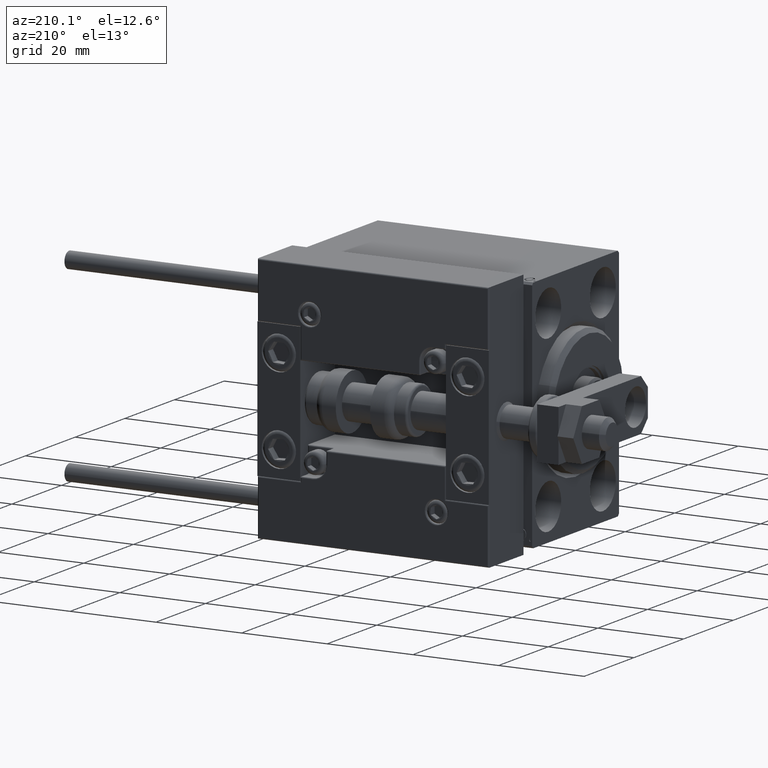
[diagram: clean part render]
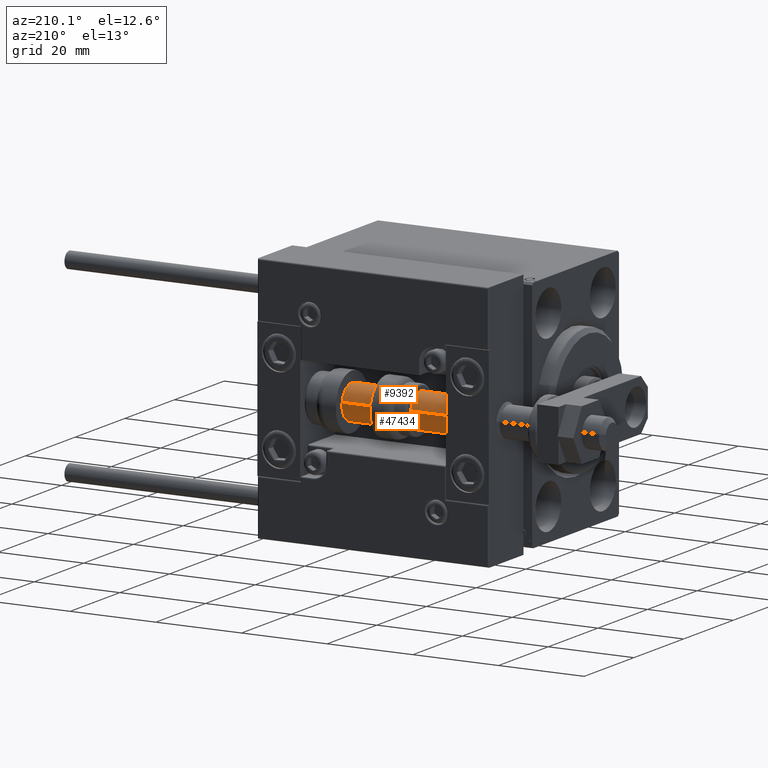
[diagram: same view with one multi-face feature highlighted, each face labeled with its STEP entity id]
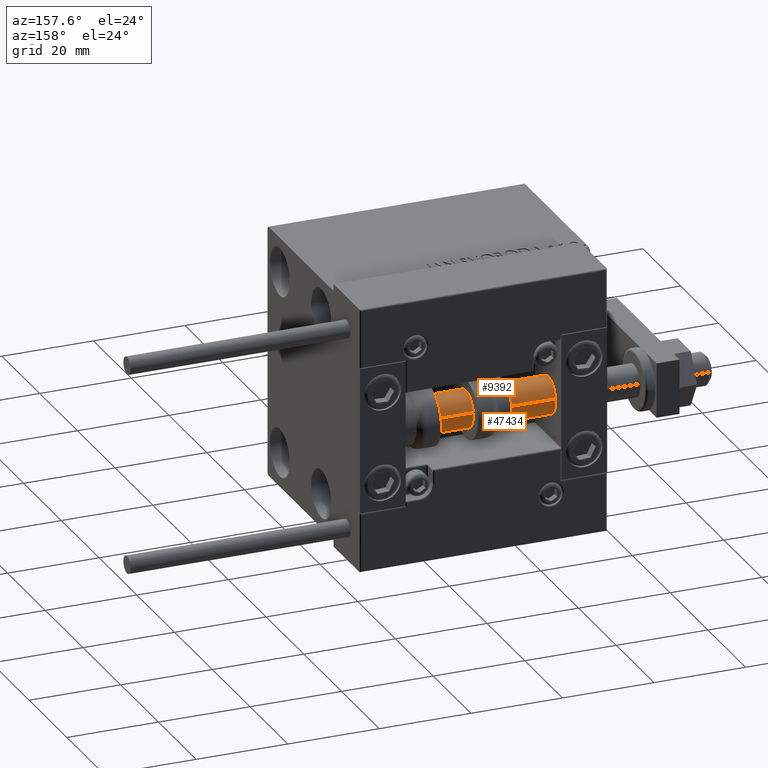
[diagram: same view with one multi-face feature highlighted, each face labeled with its STEP entity id]
A machine part, auxiliary view. The highlighted faces form ONE feature: a constant-radius fillet chain: 2 tangent blend faces with common blend radius 4 mm. The faces share edges in the B-rep.
A second angle (auxiliary view) of the same feature is appended — it is thin or edge-on in the first view.
Their STEP definitions:
[1] entity #47434 (Cylinder):
#690 = VERTEX_POINT ( 'NONE', #14343 ) ;
#1330 = VERTEX_POINT ( 'NONE', #35649 ) ;
#1540 = LINE ( 'NONE', #13022, #34460 ) ;
#5790 = VERTEX_POINT ( 'NONE', #45395 ) ;
#8046 = CIRCLE ( 'NONE', #47069, 4.000000000000000000 ) ;
#11405 = EDGE_CURVE ( 'NONE', #13223, #690, #1540, .T. ) ;
#13022 = CARTESIAN_POINT ( 'NONE',  ( -4.000000000000000000, 0.000000000000000000, 56.00000000000000000 ) ) ;
#13223 = VERTEX_POINT ( 'NONE', #24955 ) ;
#13574 = DIRECTION ( 'NONE',  ( -0.000000000000000000, -0.000000000000000000, -1.000000000000000000 ) ) ;
#14343 = CARTESIAN_POINT ( 'NONE',  ( -4.000000000000000000, 0.000000000000000000, 2.000000000000036415 ) ) ;
#15312 = CIRCLE ( 'NONE', #42943, 4.000000000000000000 ) ;
#17651 = LINE ( 'NONE', #45147, #23522 ) ;
#20446 = EDGE_LOOP ( 'NONE', ( #37776, #38299, #43767, #37740 ) ) ;
#23522 = VECTOR ( 'NONE', #13574, 1000.000000000000000 ) ;
#24311 = DIRECTION ( 'NONE',  ( 1.000000000000000000, 0.000000000000000000, 0.000000000000000000 ) ) ;
#24941 = CARTESIAN_POINT ( 'NONE',  ( 0.000000000000000000, 0.000000000000000000, 56.00000000000000000 ) ) ;
#24955 = CARTESIAN_POINT ( 'NONE',  ( -4.000000000000000000, 0.000000000000000000, 56.00000000000000000 ) ) ;
#25492 = DIRECTION ( 'NONE',  ( -0.000000000000000000, -0.000000000000000000, -1.000000000000000000 ) ) ;
#25821 = EDGE_CURVE ( 'NONE', #13223, #5790, #15312, .T. ) ;
#25851 = CARTESIAN_POINT ( 'NONE',  ( 0.000000000000000000, 0.000000000000000000, 2.000000000000036415 ) ) ;
#26380 = AXIS2_PLACEMENT_3D ( 'NONE', #24941, #39976, #29257 ) ;
#27863 = EDGE_CURVE ( 'NONE', #5790, #1330, #17651, .T. ) ;
#28449 = EDGE_CURVE ( 'NONE', #690, #1330, #8046, .T. ) ;
#29257 = DIRECTION ( 'NONE',  ( -1.000000000000000000, 0.000000000000000000, 0.000000000000000000 ) ) ;
#34460 = VECTOR ( 'NONE', #25492, 1000.000000000000000 ) ;
#35649 = CARTESIAN_POINT ( 'NONE',  ( 4.000000000000000000, 4.898587196589412829E-16, 2.000000000000036415 ) ) ;
#37740 = ORIENTED_EDGE ( 'NONE', *, *, #28449, .T. ) ;
#37776 = ORIENTED_EDGE ( 'NONE', *, *, #27863, .F. ) ;
#38299 = ORIENTED_EDGE ( 'NONE', *, *, #25821, .F. ) ;
#39976 = DIRECTION ( 'NONE',  ( -0.000000000000000000, -0.000000000000000000, -1.000000000000000000 ) ) ;
#40586 = DIRECTION ( 'NONE',  ( 0.000000000000000000, 0.000000000000000000, 1.000000000000000000 ) ) ;
#42943 = AXIS2_PLACEMENT_3D ( 'NONE', #47953, #40586, #24311 ) ;
#43767 = ORIENTED_EDGE ( 'NONE', *, *, #11405, .T. ) ;
#44291 = CYLINDRICAL_SURFACE ( 'NONE', #26380, 4.000000000000000000 ) ;
#44442 = DIRECTION ( 'NONE',  ( -0.000000000000000000, -0.000000000000000000, 1.000000000000000000 ) ) ;
#45147 = CARTESIAN_POINT ( 'NONE',  ( 4.000000000000000000, 4.898587196589412829E-16, 56.00000000000000000 ) ) ;
#45395 = CARTESIAN_POINT ( 'NONE',  ( 4.000000000000000000, 4.898587196589412829E-16, 56.00000000000000000 ) ) ;
#45450 = DIRECTION ( 'NONE',  ( 1.000000000000000000, 0.000000000000000000, 0.000000000000000000 ) ) ;
#47069 = AXIS2_PLACEMENT_3D ( 'NONE', #25851, #44442, #45450 ) ;
#47434 = ADVANCED_FACE ( 'NONE', ( #48343 ), #44291, .T. ) ;
#47953 = CARTESIAN_POINT ( 'NONE',  ( 0.000000000000000000, 0.000000000000000000, 56.00000000000000000 ) ) ;
#48343 = FACE_OUTER_BOUND ( 'NONE', #20446, .T. ) ;
[2] entity #9392 (Cylinder):
#690 = VERTEX_POINT ( 'NONE', #14343 ) ;
#1330 = VERTEX_POINT ( 'NONE', #35649 ) ;
#1540 = LINE ( 'NONE', #13022, #34460 ) ;
#4634 = CYLINDRICAL_SURFACE ( 'NONE', #33693, 4.000000000000000000 ) ;
#5114 = CARTESIAN_POINT ( 'NONE',  ( 0.000000000000000000, 0.000000000000000000, 2.000000000000036415 ) ) ;
#5146 = ORIENTED_EDGE ( 'NONE', *, *, #11405, .F. ) ;
#5790 = VERTEX_POINT ( 'NONE', #45395 ) ;
#6387 = AXIS2_PLACEMENT_3D ( 'NONE', #5114, #48375, #9193 ) ;
#8874 = CARTESIAN_POINT ( 'NONE',  ( 0.000000000000000000, 0.000000000000000000, 56.00000000000000000 ) ) ;
#9193 = DIRECTION ( 'NONE',  ( 1.000000000000000000, 0.000000000000000000, 0.000000000000000000 ) ) ;
#9392 = ADVANCED_FACE ( 'NONE', ( #27807 ), #4634, .T. ) ;
#10196 = DIRECTION ( 'NONE',  ( -1.000000000000000000, 0.000000000000000000, 0.000000000000000000 ) ) ;
#11405 = EDGE_CURVE ( 'NONE', #13223, #690, #1540, .T. ) ;
#12887 = CIRCLE ( 'NONE', #6387, 4.000000000000000000 ) ;
#13022 = CARTESIAN_POINT ( 'NONE',  ( -4.000000000000000000, 0.000000000000000000, 56.00000000000000000 ) ) ;
#13223 = VERTEX_POINT ( 'NONE', #24955 ) ;
#13574 = DIRECTION ( 'NONE',  ( -0.000000000000000000, -0.000000000000000000, -1.000000000000000000 ) ) ;
#14343 = CARTESIAN_POINT ( 'NONE',  ( -4.000000000000000000, 0.000000000000000000, 2.000000000000036415 ) ) ;
#14858 = EDGE_CURVE ( 'NONE', #5790, #13223, #18291, .T. ) ;
#17651 = LINE ( 'NONE', #45147, #23522 ) ;
#18081 = DIRECTION ( 'NONE',  ( -0.000000000000000000, -0.000000000000000000, -1.000000000000000000 ) ) ;
#18291 = CIRCLE ( 'NONE', #45109, 4.000000000000000000 ) ;
#23522 = VECTOR ( 'NONE', #13574, 1000.000000000000000 ) ;
#24955 = CARTESIAN_POINT ( 'NONE',  ( -4.000000000000000000, 0.000000000000000000, 56.00000000000000000 ) ) ;
#25492 = DIRECTION ( 'NONE',  ( -0.000000000000000000, -0.000000000000000000, -1.000000000000000000 ) ) ;
#26278 = ORIENTED_EDGE ( 'NONE', *, *, #14858, .F. ) ;
#26985 = EDGE_CURVE ( 'NONE', #1330, #690, #12887, .T. ) ;
#27807 = FACE_OUTER_BOUND ( 'NONE', #32688, .T. ) ;
#27863 = EDGE_CURVE ( 'NONE', #5790, #1330, #17651, .T. ) ;
#32035 = DIRECTION ( 'NONE',  ( 1.000000000000000000, 0.000000000000000000, 0.000000000000000000 ) ) ;
#32514 = DIRECTION ( 'NONE',  ( 0.000000000000000000, 0.000000000000000000, 1.000000000000000000 ) ) ;
#32688 = EDGE_LOOP ( 'NONE', ( #26278, #44624, #43575, #5146 ) ) ;
#33693 = AXIS2_PLACEMENT_3D ( 'NONE', #44568, #18081, #10196 ) ;
#34460 = VECTOR ( 'NONE', #25492, 1000.000000000000000 ) ;
#35649 = CARTESIAN_POINT ( 'NONE',  ( 4.000000000000000000, 4.898587196589412829E-16, 2.000000000000036415 ) ) ;
#43575 = ORIENTED_EDGE ( 'NONE', *, *, #26985, .T. ) ;
#44568 = CARTESIAN_POINT ( 'NONE',  ( 0.000000000000000000, 0.000000000000000000, 56.00000000000000000 ) ) ;
#44624 = ORIENTED_EDGE ( 'NONE', *, *, #27863, .T. ) ;
#45109 = AXIS2_PLACEMENT_3D ( 'NONE', #8874, #32514, #32035 ) ;
#45147 = CARTESIAN_POINT ( 'NONE',  ( 4.000000000000000000, 4.898587196589412829E-16, 56.00000000000000000 ) ) ;
#45395 = CARTESIAN_POINT ( 'NONE',  ( 4.000000000000000000, 4.898587196589412829E-16, 56.00000000000000000 ) ) ;
#48375 = DIRECTION ( 'NONE',  ( -0.000000000000000000, -0.000000000000000000, 1.000000000000000000 ) ) ;